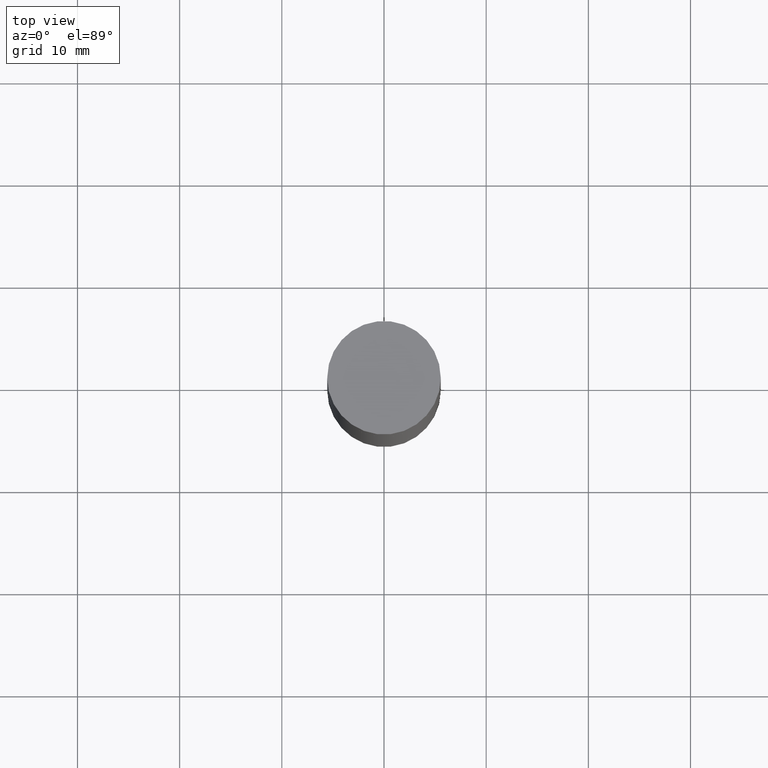
[diagram: clean part render]
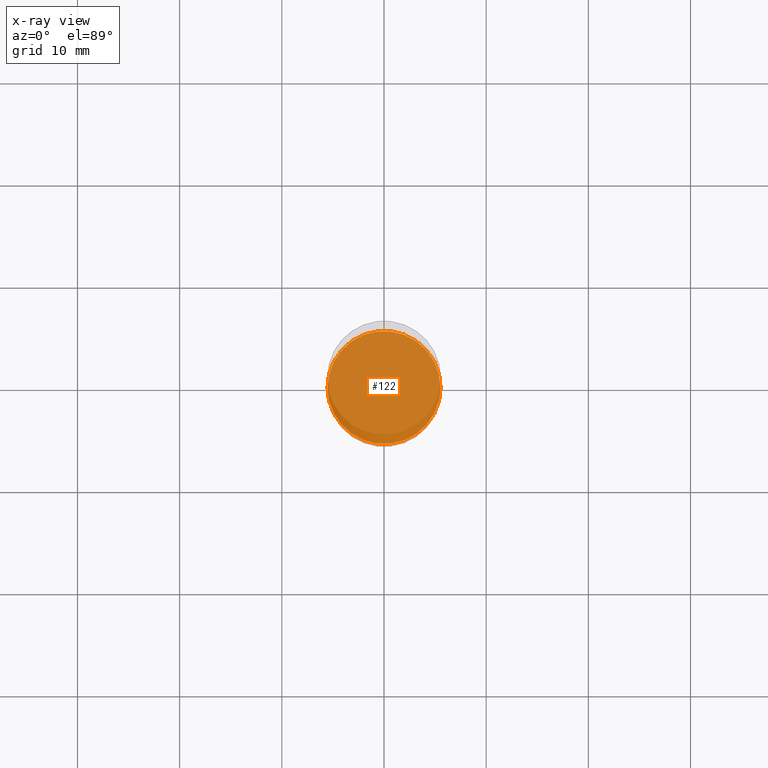
[diagram: x-ray — body ghosted, one internal face saturated and labeled with its STEP entity id]
A machine part, top view, then the same camera in x-ray: the body is ghosted and one INTERNAL B-rep face — a face not visible from any outside direction — is saturated and labeled: STEP entity #122.
In plain terms, the highlighted planar face has unit normal (-0, 0, 1).
Its self-contained STEP definition (entity closure, byte-faithful):
#33 = DIRECTION ( 'NONE',  ( -2.438088387897960049E-29, 3.491481338843145188E-15, 1.000000000000000000 ) ) ;
#46 = CARTESIAN_POINT ( 'NONE',  ( -0.2177499999999999991, -6.086855907922961200E-15, -2.187999999999999723 ) ) ;
#50 = DIRECTION ( 'NONE',  ( -2.445468806185136597E-29, 3.491481338843145583E-15, 1.000000000000000000 ) ) ;
#71 = ORIENTED_EDGE ( 'NONE', *, *, #153, .F. ) ;
#90 = PLANE ( 'NONE',  #490 ) ;
#122 = ADVANCED_FACE ( 'NONE', ( #147 ), #90, .F. ) ;
#133 = VERTEX_POINT ( 'NONE', #536 ) ;
#147 = FACE_OUTER_BOUND ( 'NONE', #368, .T. ) ;
#153 = EDGE_CURVE ( 'NONE', #412, #133, #390, .T. ) ;
#237 = AXIS2_PLACEMENT_3D ( 'NONE', #352, #507, #397 ) ;
#297 = CARTESIAN_POINT ( 'NONE',  ( 5.350685747933077986E-29, -7.639361169388800962E-15, -2.187999999999999723 ) ) ;
#312 = EDGE_CURVE ( 'NONE', #133, #412, #355, .T. ) ;
#352 = CARTESIAN_POINT ( 'NONE',  ( 5.350685747933077986E-29, -7.639361169388800962E-15, -2.187999999999999723 ) ) ;
#355 = CIRCLE ( 'NONE', #380, 0.2177499999999999991 ) ;
#368 = EDGE_LOOP ( 'NONE', ( #376, #71 ) ) ;
#376 = ORIENTED_EDGE ( 'NONE', *, *, #312, .F. ) ;
#380 = AXIS2_PLACEMENT_3D ( 'NONE', #577, #50, #630 ) ;
#390 = CIRCLE ( 'NONE', #237, 0.2177499999999999991 ) ;
#397 = DIRECTION ( 'NONE',  ( 1.000000000000000000, -6.982962677686266711E-15, 0.000000000000000000 ) ) ;
#412 = VERTEX_POINT ( 'NONE', #46 ) ;
#490 = AXIS2_PLACEMENT_3D ( 'NONE', #297, #33, #591 ) ;
#507 = DIRECTION ( 'NONE',  ( -2.445468806185136597E-29, 3.491481338843145583E-15, 1.000000000000000000 ) ) ;
#536 = CARTESIAN_POINT ( 'NONE',  ( 0.2177499999999999991, -9.159901292454986579E-15, -2.187999999999999723 ) ) ;
#577 = CARTESIAN_POINT ( 'NONE',  ( 5.350685747933077986E-29, -7.639361169388800962E-15, -2.187999999999999723 ) ) ;
#591 = DIRECTION ( 'NONE',  ( 1.000000000000000000, -6.982962677686265922E-15, 4.876176775795935793E-29 ) ) ;
#630 = DIRECTION ( 'NONE',  ( 1.000000000000000000, -6.982962677686266711E-15, 0.000000000000000000 ) ) ;